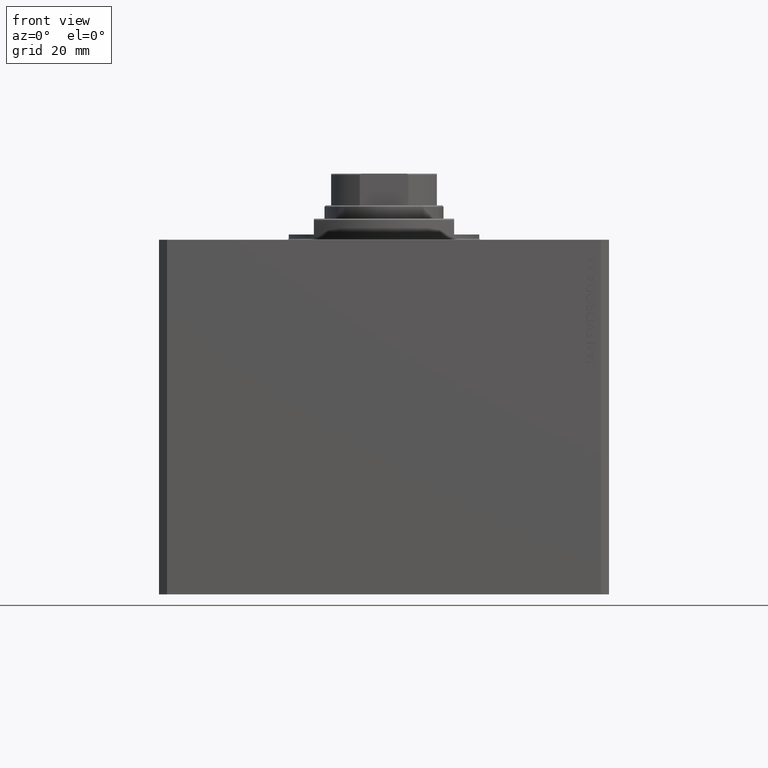
[diagram: clean part render]
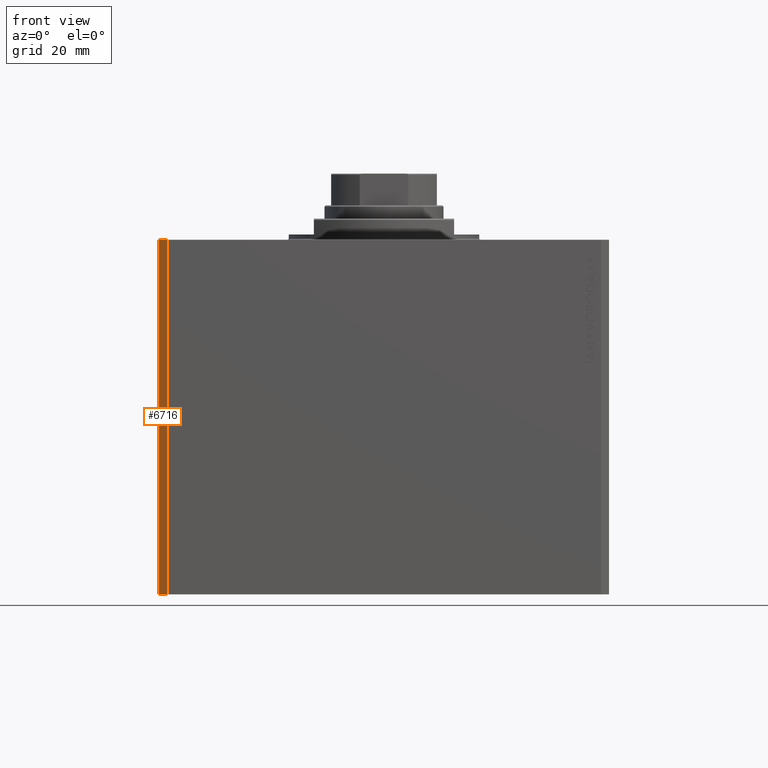
[diagram: same view with one face highlighted and labeled with its STEP entity id]
A machine part, front view. The second image highlights one B-rep face of the part: STEP entity #6716.
In plain terms, the highlighted planar face has unit normal (-0.7071, -0.7071, 0).
Its self-contained STEP definition (entity closure, byte-faithful):
#262 = LINE ( 'NONE', #36324, #22832 ) ;
#2596 = CARTESIAN_POINT ( 'NONE',  ( -82.00000000000000000, -70.00000000000000000, -134.0000000000000000 ) ) ;
#4327 = DIRECTION ( 'NONE',  ( 0.7071067811865474617, -0.7071067811865474617, 0.000000000000000000 ) ) ;
#4477 = DIRECTION ( 'NONE',  ( 0.7071067811865474617, -0.7071067811865474617, 0.000000000000000000 ) ) ;
#4512 = EDGE_LOOP ( 'NONE', ( #22624, #26908, #41912, #26066 ) ) ;
#4734 = DIRECTION ( 'NONE',  ( -0.7071067811865475727, -0.7071067811865475727, 0.000000000000000000 ) ) ;
#4988 = DIRECTION ( 'NONE',  ( 0.000000000000000000, 0.000000000000000000, 1.000000000000000000 ) ) ;
#6716 = ADVANCED_FACE ( 'NONE', ( #44835 ), #33836, .T. ) ;
#11238 = EDGE_CURVE ( 'NONE', #46016, #27325, #45056, .T. ) ;
#12125 = DIRECTION ( 'NONE',  ( 0.7071067811865474617, -0.7071067811865474617, 0.000000000000000000 ) ) ;
#12168 = VECTOR ( 'NONE', #4477, 1000.000000000000114 ) ;
#13492 = CARTESIAN_POINT ( 'NONE',  ( -85.00000000000000000, -67.00000000000000000, -134.0000000000000000 ) ) ;
#15729 = LINE ( 'NONE', #13492, #31448 ) ;
#17182 = VERTEX_POINT ( 'NONE', #30094 ) ;
#20816 = EDGE_CURVE ( 'NONE', #46016, #41666, #15729, .T. ) ;
#22624 = ORIENTED_EDGE ( 'NONE', *, *, #42717, .F. ) ;
#22832 = VECTOR ( 'NONE', #4327, 1000.000000000000114 ) ;
#26066 = ORIENTED_EDGE ( 'NONE', *, *, #34822, .T. ) ;
#26908 = ORIENTED_EDGE ( 'NONE', *, *, #20816, .F. ) ;
#27181 = CARTESIAN_POINT ( 'NONE',  ( -85.00000000000000000, -67.00000000000000000, 0.000000000000000000 ) ) ;
#27325 = VERTEX_POINT ( 'NONE', #2596 ) ;
#28716 = VECTOR ( 'NONE', #32615, 1000.000000000000000 ) ;
#30094 = CARTESIAN_POINT ( 'NONE',  ( -82.00000000000000000, -70.00000000000000000, 0.000000000000000000 ) ) ;
#30476 = CARTESIAN_POINT ( 'NONE',  ( -85.00000000000000000, -67.00000000000000000, -134.0000000000000000 ) ) ;
#31448 = VECTOR ( 'NONE', #4988, 1000.000000000000000 ) ;
#32615 = DIRECTION ( 'NONE',  ( 0.000000000000000000, 0.000000000000000000, 1.000000000000000000 ) ) ;
#33836 = PLANE ( 'NONE',  #37221 ) ;
#34822 = EDGE_CURVE ( 'NONE', #27325, #17182, #40518, .T. ) ;
#36324 = CARTESIAN_POINT ( 'NONE',  ( -85.00000000000000000, -67.00000000000000000, 0.000000000000000000 ) ) ;
#37173 = CARTESIAN_POINT ( 'NONE',  ( -85.00000000000000000, -67.00000000000000000, -134.0000000000000000 ) ) ;
#37221 = AXIS2_PLACEMENT_3D ( 'NONE', #30476, #4734, #12125 ) ;
#40518 = LINE ( 'NONE', #43622, #28716 ) ;
#41666 = VERTEX_POINT ( 'NONE', #27181 ) ;
#41912 = ORIENTED_EDGE ( 'NONE', *, *, #11238, .T. ) ;
#42717 = EDGE_CURVE ( 'NONE', #41666, #17182, #262, .T. ) ;
#43622 = CARTESIAN_POINT ( 'NONE',  ( -82.00000000000000000, -70.00000000000000000, -134.0000000000000000 ) ) ;
#44311 = CARTESIAN_POINT ( 'NONE',  ( -85.00000000000000000, -67.00000000000000000, -134.0000000000000000 ) ) ;
#44835 = FACE_OUTER_BOUND ( 'NONE', #4512, .T. ) ;
#45056 = LINE ( 'NONE', #37173, #12168 ) ;
#46016 = VERTEX_POINT ( 'NONE', #44311 ) ;